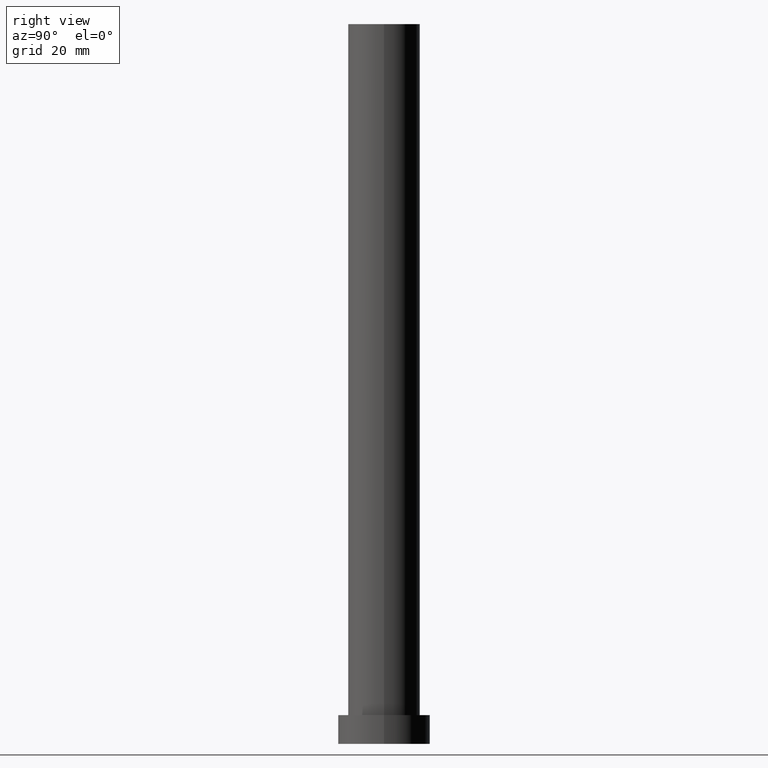
[diagram: clean part render]
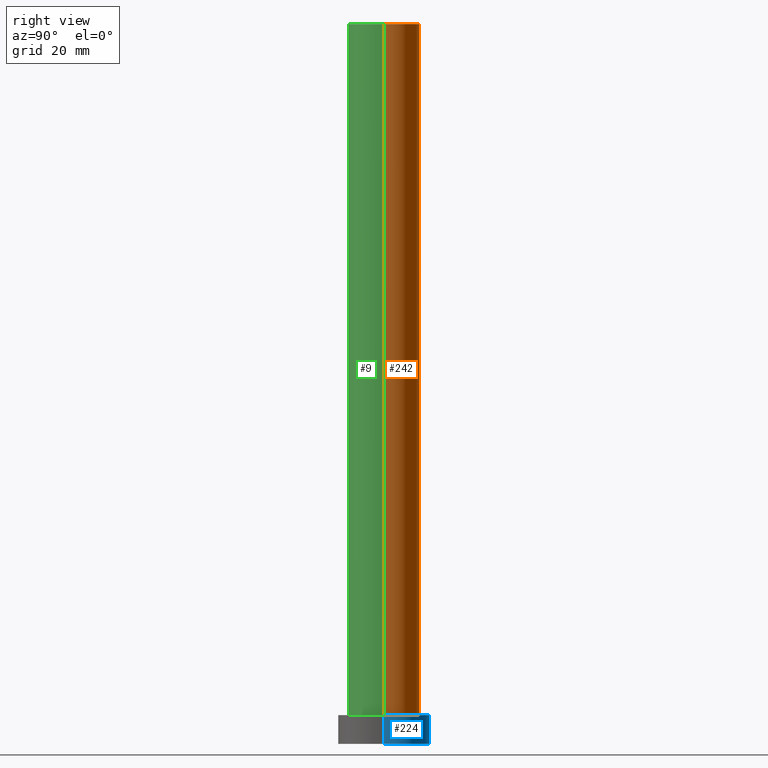
[diagram: same view with three faces highlighted in distinct colors, each labeled with its STEP entity id]
A machine part, right view with three faces highlighted in distinct colors.
Their STEP definitions:

[orange] entity #242 — the highlighted cylindrical surface (edge-blend (fillet) strip) has radius 12.5 mm, axis along (-0, -0, -1).
#1 = CARTESIAN_POINT ( 'NONE',  ( 12.50000000000000000, 1.530808498934191521E-15, 10.00000000000000000 ) ) ;
#6 = CIRCLE ( 'NONE', #146, 12.50000000000000000 ) ;
#16 = DIRECTION ( 'NONE',  ( -0.000000000000000000, -0.000000000000000000, -1.000000000000000000 ) ) ;
#26 = VECTOR ( 'NONE', #16, 1000.000000000000000 ) ;
#27 = EDGE_CURVE ( 'NONE', #202, #165, #170, .T. ) ;
#30 = CARTESIAN_POINT ( 'NONE',  ( 0.000000000000000000, 0.000000000000000000, 10.00000000000000000 ) ) ;
#43 = EDGE_CURVE ( 'NONE', #202, #208, #6, .T. ) ;
#63 = VECTOR ( 'NONE', #130, 1000.000000000000000 ) ;
#65 = VERTEX_POINT ( 'NONE', #251 ) ;
#93 = CARTESIAN_POINT ( 'NONE',  ( 0.000000000000000000, 0.000000000000000000, 250.0000000000000000 ) ) ;
#96 = DIRECTION ( 'NONE',  ( -0.000000000000000000, -0.000000000000000000, -1.000000000000000000 ) ) ;
#111 = DIRECTION ( 'NONE',  ( -1.000000000000000000, 0.000000000000000000, 0.000000000000000000 ) ) ;
#115 = DIRECTION ( 'NONE',  ( 0.000000000000000000, 0.000000000000000000, 1.000000000000000000 ) ) ;
#123 = EDGE_LOOP ( 'NONE', ( #181, #148, #149, #189 ) ) ;
#130 = DIRECTION ( 'NONE',  ( -0.000000000000000000, -0.000000000000000000, -1.000000000000000000 ) ) ;
#133 = EDGE_CURVE ( 'NONE', #208, #65, #155, .T. ) ;
#146 = AXIS2_PLACEMENT_3D ( 'NONE', #93, #210, #192 ) ;
#148 = ORIENTED_EDGE ( 'NONE', *, *, #27, .T. ) ;
#149 = ORIENTED_EDGE ( 'NONE', *, *, #218, .T. ) ;
#155 = LINE ( 'NONE', #232, #63 ) ;
#165 = VERTEX_POINT ( 'NONE', #1 ) ;
#168 = DIRECTION ( 'NONE',  ( 1.000000000000000000, 0.000000000000000000, 0.000000000000000000 ) ) ;
#170 = LINE ( 'NONE', #174, #26 ) ;
#171 = CARTESIAN_POINT ( 'NONE',  ( 12.50000000000000000, 1.530808498934191521E-15, 250.0000000000000000 ) ) ;
#174 = CARTESIAN_POINT ( 'NONE',  ( 12.50000000000000000, 1.530808498934191521E-15, 250.0000000000000000 ) ) ;
#181 = ORIENTED_EDGE ( 'NONE', *, *, #43, .F. ) ;
#189 = ORIENTED_EDGE ( 'NONE', *, *, #133, .F. ) ;
#192 = DIRECTION ( 'NONE',  ( 1.000000000000000000, 0.000000000000000000, 0.000000000000000000 ) ) ;
#201 = CIRCLE ( 'NONE', #240, 12.50000000000000000 ) ;
#202 = VERTEX_POINT ( 'NONE', #171 ) ;
#208 = VERTEX_POINT ( 'NONE', #233 ) ;
#210 = DIRECTION ( 'NONE',  ( 0.000000000000000000, 0.000000000000000000, 1.000000000000000000 ) ) ;
#213 = FACE_OUTER_BOUND ( 'NONE', #123, .T. ) ;
#218 = EDGE_CURVE ( 'NONE', #165, #65, #201, .T. ) ;
#223 = AXIS2_PLACEMENT_3D ( 'NONE', #231, #96, #111 ) ;
#226 = CYLINDRICAL_SURFACE ( 'NONE', #223, 12.50000000000000000 ) ;
#231 = CARTESIAN_POINT ( 'NONE',  ( 0.000000000000000000, 0.000000000000000000, 250.0000000000000000 ) ) ;
#232 = CARTESIAN_POINT ( 'NONE',  ( -12.50000000000000000, 0.000000000000000000, 250.0000000000000000 ) ) ;
#233 = CARTESIAN_POINT ( 'NONE',  ( -12.50000000000000000, 0.000000000000000000, 250.0000000000000000 ) ) ;
#240 = AXIS2_PLACEMENT_3D ( 'NONE', #30, #115, #168 ) ;
#242 = ADVANCED_FACE ( 'NONE', ( #213 ), #226, .T. ) ;
#251 = CARTESIAN_POINT ( 'NONE',  ( -12.50000000000000000, 0.000000000000000000, 10.00000000000000000 ) ) ;

[blue] entity #224 — the highlighted cylindrical surface (partial cylindrical patch) has radius 16 mm, axis along (-0, -0, -1).
#7 = CIRCLE ( 'NONE', #88, 16.00000000000000000 ) ;
#12 = VERTEX_POINT ( 'NONE', #180 ) ;
#15 = CARTESIAN_POINT ( 'NONE',  ( 0.000000000000000000, 0.000000000000000000, 0.000000000000000000 ) ) ;
#18 = VECTOR ( 'NONE', #109, 1000.000000000000000 ) ;
#21 = DIRECTION ( 'NONE',  ( 0.000000000000000000, 0.000000000000000000, 1.000000000000000000 ) ) ;
#32 = CARTESIAN_POINT ( 'NONE',  ( 0.000000000000000000, 0.000000000000000000, 10.00000000000000000 ) ) ;
#34 = LINE ( 'NONE', #94, #18 ) ;
#36 = CARTESIAN_POINT ( 'NONE',  ( 16.00000000000000000, 1.959434878635765131E-15, 10.00000000000000000 ) ) ;
#46 = ORIENTED_EDGE ( 'NONE', *, *, #221, .F. ) ;
#56 = DIRECTION ( 'NONE',  ( -1.000000000000000000, 0.000000000000000000, 0.000000000000000000 ) ) ;
#62 = VERTEX_POINT ( 'NONE', #95 ) ;
#66 = DIRECTION ( 'NONE',  ( 0.000000000000000000, 0.000000000000000000, 1.000000000000000000 ) ) ;
#72 = CYLINDRICAL_SURFACE ( 'NONE', #236, 16.00000000000000000 ) ;
#81 = AXIS2_PLACEMENT_3D ( 'NONE', #15, #66, #203 ) ;
#88 = AXIS2_PLACEMENT_3D ( 'NONE', #253, #21, #209 ) ;
#89 = VERTEX_POINT ( 'NONE', #36 ) ;
#94 = CARTESIAN_POINT ( 'NONE',  ( 16.00000000000000000, 1.959434878635765131E-15, 10.00000000000000000 ) ) ;
#95 = CARTESIAN_POINT ( 'NONE',  ( -16.00000000000000000, 0.000000000000000000, 10.00000000000000000 ) ) ;
#109 = DIRECTION ( 'NONE',  ( -0.000000000000000000, -0.000000000000000000, -1.000000000000000000 ) ) ;
#110 = ORIENTED_EDGE ( 'NONE', *, *, #243, .F. ) ;
#129 = CARTESIAN_POINT ( 'NONE',  ( 16.00000000000000000, 1.959434878635765131E-15, 0.000000000000000000 ) ) ;
#152 = LINE ( 'NONE', #249, #198 ) ;
#162 = CIRCLE ( 'NONE', #81, 16.00000000000000000 ) ;
#180 = CARTESIAN_POINT ( 'NONE',  ( -16.00000000000000000, 0.000000000000000000, 0.000000000000000000 ) ) ;
#182 = EDGE_CURVE ( 'NONE', #89, #222, #34, .T. ) ;
#184 = ORIENTED_EDGE ( 'NONE', *, *, #238, .T. ) ;
#186 = FACE_OUTER_BOUND ( 'NONE', #248, .T. ) ;
#190 = DIRECTION ( 'NONE',  ( -0.000000000000000000, -0.000000000000000000, -1.000000000000000000 ) ) ;
#198 = VECTOR ( 'NONE', #229, 1000.000000000000000 ) ;
#203 = DIRECTION ( 'NONE',  ( 1.000000000000000000, 0.000000000000000000, 0.000000000000000000 ) ) ;
#209 = DIRECTION ( 'NONE',  ( 1.000000000000000000, 0.000000000000000000, 0.000000000000000000 ) ) ;
#221 = EDGE_CURVE ( 'NONE', #62, #12, #152, .T. ) ;
#222 = VERTEX_POINT ( 'NONE', #129 ) ;
#224 = ADVANCED_FACE ( 'NONE', ( #186 ), #72, .T. ) ;
#229 = DIRECTION ( 'NONE',  ( -0.000000000000000000, -0.000000000000000000, -1.000000000000000000 ) ) ;
#236 = AXIS2_PLACEMENT_3D ( 'NONE', #32, #190, #56 ) ;
#238 = EDGE_CURVE ( 'NONE', #222, #12, #162, .T. ) ;
#243 = EDGE_CURVE ( 'NONE', #89, #62, #7, .T. ) ;
#246 = ORIENTED_EDGE ( 'NONE', *, *, #182, .T. ) ;
#248 = EDGE_LOOP ( 'NONE', ( #110, #246, #184, #46 ) ) ;
#249 = CARTESIAN_POINT ( 'NONE',  ( -16.00000000000000000, 0.000000000000000000, 10.00000000000000000 ) ) ;
#253 = CARTESIAN_POINT ( 'NONE',  ( 0.000000000000000000, 0.000000000000000000, 10.00000000000000000 ) ) ;

[green] entity #9 — the highlighted cylindrical surface (edge-blend (fillet) strip) has radius 12.5 mm, axis along (-0, -0, -1).
#1 = CARTESIAN_POINT ( 'NONE',  ( 12.50000000000000000, 1.530808498934191521E-15, 10.00000000000000000 ) ) ;
#9 = ADVANCED_FACE ( 'NONE', ( #49 ), #204, .T. ) ;
#10 = ORIENTED_EDGE ( 'NONE', *, *, #105, .T. ) ;
#16 = DIRECTION ( 'NONE',  ( -0.000000000000000000, -0.000000000000000000, -1.000000000000000000 ) ) ;
#20 = DIRECTION ( 'NONE',  ( 0.000000000000000000, 0.000000000000000000, 1.000000000000000000 ) ) ;
#26 = VECTOR ( 'NONE', #16, 1000.000000000000000 ) ;
#27 = EDGE_CURVE ( 'NONE', #202, #165, #170, .T. ) ;
#31 = CARTESIAN_POINT ( 'NONE',  ( 0.000000000000000000, 0.000000000000000000, 250.0000000000000000 ) ) ;
#33 = ORIENTED_EDGE ( 'NONE', *, *, #178, .F. ) ;
#45 = CIRCLE ( 'NONE', #60, 12.50000000000000000 ) ;
#49 = FACE_OUTER_BOUND ( 'NONE', #85, .T. ) ;
#55 = CIRCLE ( 'NONE', #86, 12.50000000000000000 ) ;
#58 = DIRECTION ( 'NONE',  ( 0.000000000000000000, 0.000000000000000000, 1.000000000000000000 ) ) ;
#60 = AXIS2_PLACEMENT_3D ( 'NONE', #157, #58, #193 ) ;
#63 = VECTOR ( 'NONE', #130, 1000.000000000000000 ) ;
#65 = VERTEX_POINT ( 'NONE', #251 ) ;
#71 = DIRECTION ( 'NONE',  ( 1.000000000000000000, 0.000000000000000000, 0.000000000000000000 ) ) ;
#84 = DIRECTION ( 'NONE',  ( -1.000000000000000000, 0.000000000000000000, 0.000000000000000000 ) ) ;
#85 = EDGE_LOOP ( 'NONE', ( #106, #33, #107, #10 ) ) ;
#86 = AXIS2_PLACEMENT_3D ( 'NONE', #154, #20, #71 ) ;
#105 = EDGE_CURVE ( 'NONE', #65, #165, #55, .T. ) ;
#106 = ORIENTED_EDGE ( 'NONE', *, *, #27, .F. ) ;
#107 = ORIENTED_EDGE ( 'NONE', *, *, #133, .T. ) ;
#130 = DIRECTION ( 'NONE',  ( -0.000000000000000000, -0.000000000000000000, -1.000000000000000000 ) ) ;
#133 = EDGE_CURVE ( 'NONE', #208, #65, #155, .T. ) ;
#154 = CARTESIAN_POINT ( 'NONE',  ( 0.000000000000000000, 0.000000000000000000, 10.00000000000000000 ) ) ;
#155 = LINE ( 'NONE', #232, #63 ) ;
#157 = CARTESIAN_POINT ( 'NONE',  ( 0.000000000000000000, 0.000000000000000000, 250.0000000000000000 ) ) ;
#165 = VERTEX_POINT ( 'NONE', #1 ) ;
#170 = LINE ( 'NONE', #174, #26 ) ;
#171 = CARTESIAN_POINT ( 'NONE',  ( 12.50000000000000000, 1.530808498934191521E-15, 250.0000000000000000 ) ) ;
#174 = CARTESIAN_POINT ( 'NONE',  ( 12.50000000000000000, 1.530808498934191521E-15, 250.0000000000000000 ) ) ;
#178 = EDGE_CURVE ( 'NONE', #208, #202, #45, .T. ) ;
#187 = DIRECTION ( 'NONE',  ( -0.000000000000000000, -0.000000000000000000, -1.000000000000000000 ) ) ;
#193 = DIRECTION ( 'NONE',  ( 1.000000000000000000, 0.000000000000000000, 0.000000000000000000 ) ) ;
#194 = AXIS2_PLACEMENT_3D ( 'NONE', #31, #187, #84 ) ;
#202 = VERTEX_POINT ( 'NONE', #171 ) ;
#204 = CYLINDRICAL_SURFACE ( 'NONE', #194, 12.50000000000000000 ) ;
#208 = VERTEX_POINT ( 'NONE', #233 ) ;
#232 = CARTESIAN_POINT ( 'NONE',  ( -12.50000000000000000, 0.000000000000000000, 250.0000000000000000 ) ) ;
#233 = CARTESIAN_POINT ( 'NONE',  ( -12.50000000000000000, 0.000000000000000000, 250.0000000000000000 ) ) ;
#251 = CARTESIAN_POINT ( 'NONE',  ( -12.50000000000000000, 0.000000000000000000, 10.00000000000000000 ) ) ;